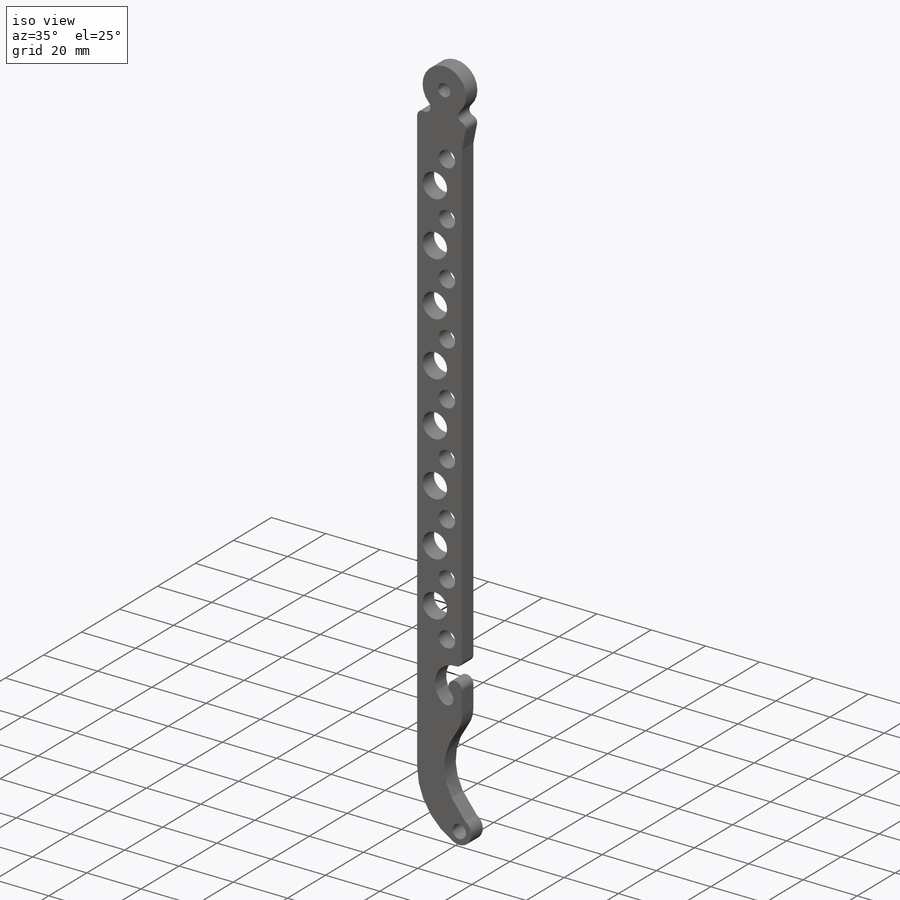
[diagram: iso view]
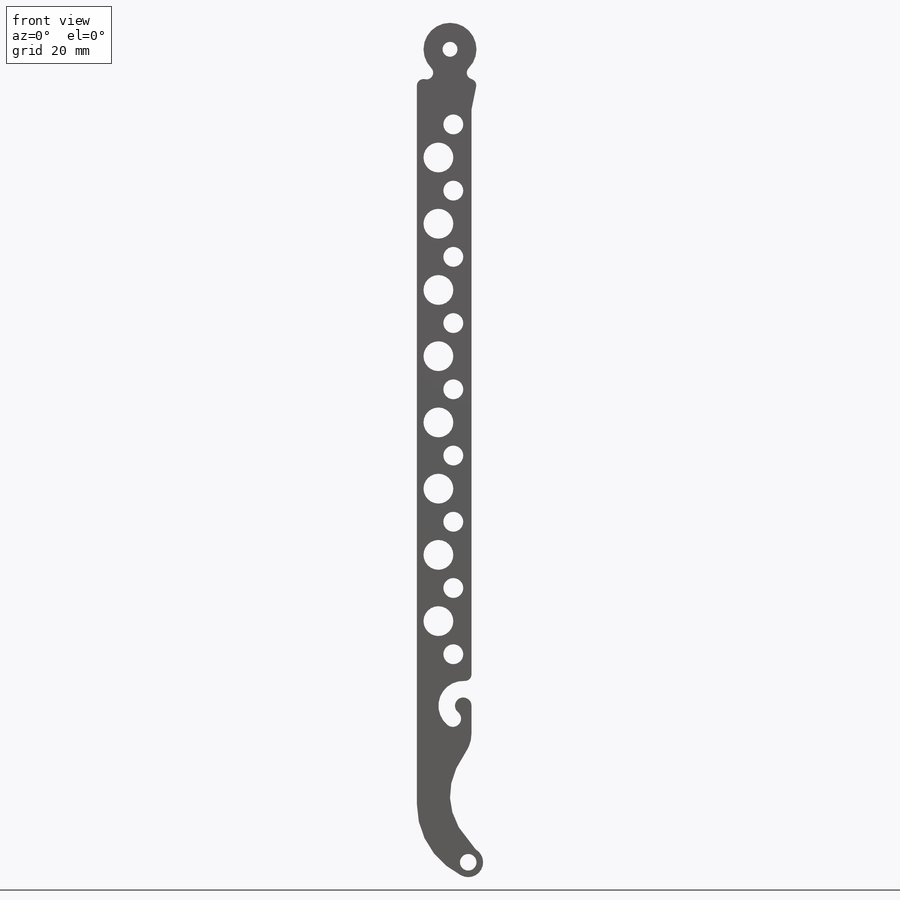
[diagram: front view]
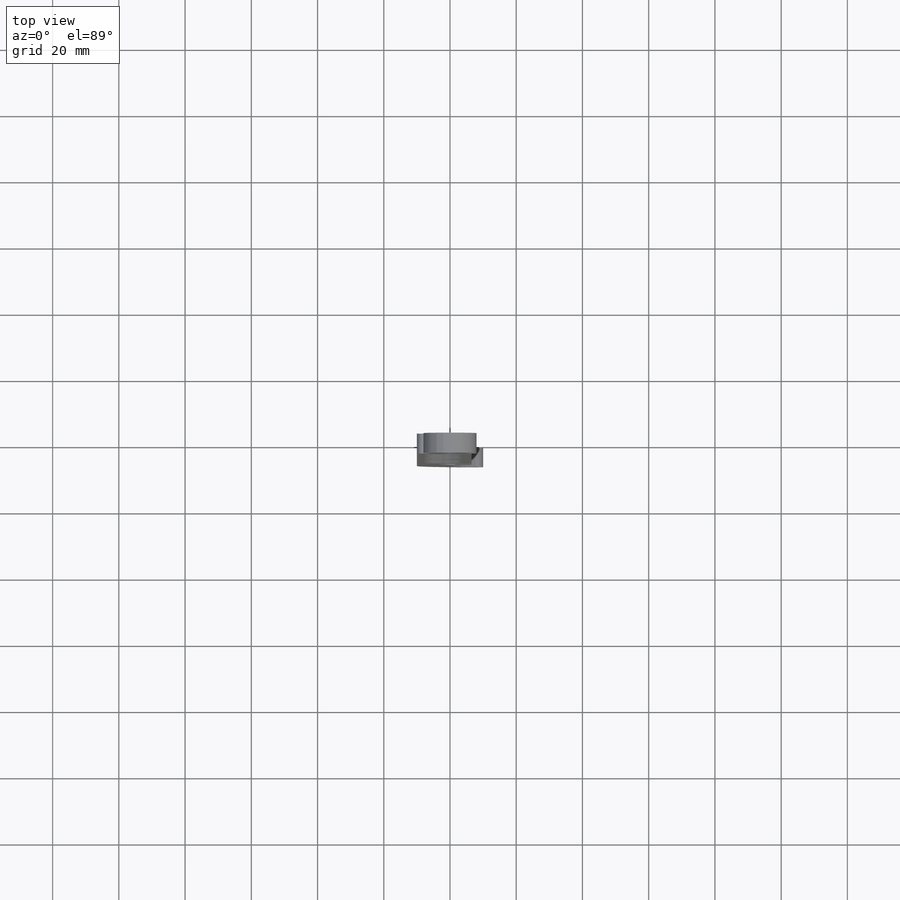
[diagram: top view]
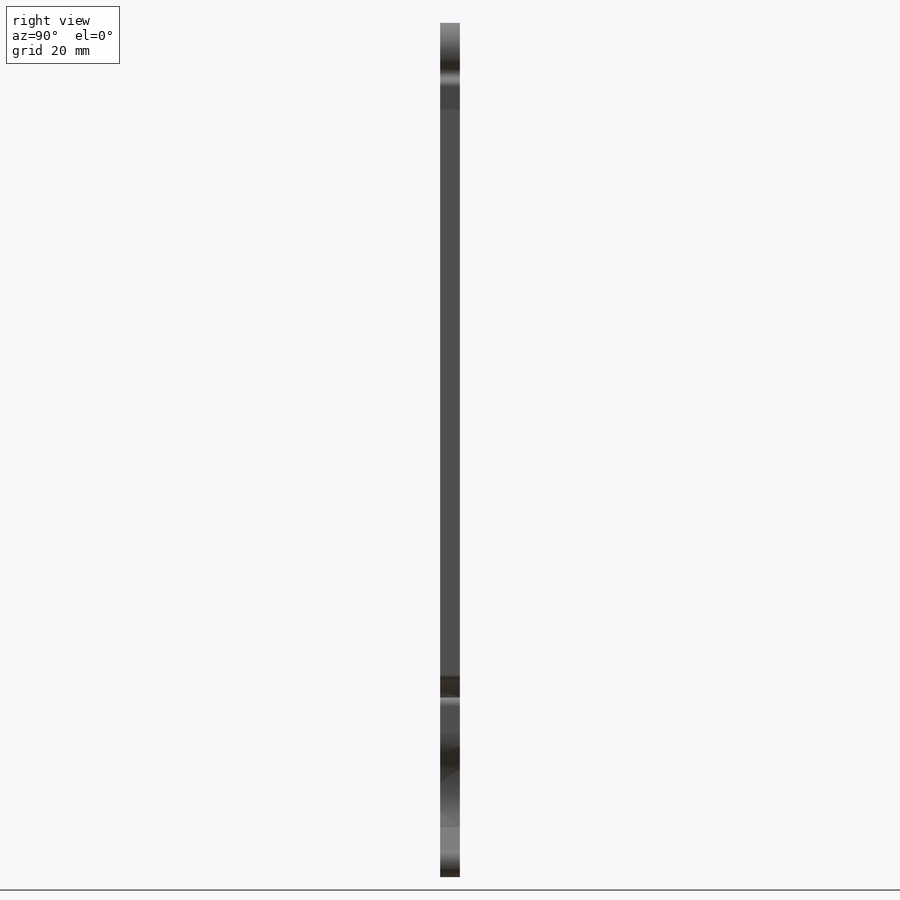
[diagram: right view]
SOLIDWORKS PART (.sldprt)
format: sldprt  version: not decoded by parser v0  size: 399,872 bytes
history: native  units: mm
features: sketch x6, plane x3, cut_extrude x3, fillet x3, material x1, extrude x1, hole x1 (+8 scaffold rows collapsed)
feature tree (26):
  scaffold x8  (default folders/planes/origin — collapsed)
  material  "Сплав 2024"
  plane  "Спереди"
  plane  "Сверху"
  plane  "Справа"
  sketch  "Эскиз1"  dims[c1.D1=20.0mm c1.D3=5.0mm c1.D4=9.0mm c1.D5=22.0mm c1.D2=250.0mm c1.D6=40.0mm c1.D7=7.0mm c1.D8=24.0mm c2.D7=3.5mm c2.D9=~9.204439mm c3.D9=30.0deg]
  extrude  "Бобышка-Вытянуть1"  Depth=6mm
  sketch  "Эскиз2"  dims[c1.D1=5.0mm c1.D2=15.0mm c1.D3=5.0mm c2.D2=~227.975612mm c3.D2=90.0deg c4.D2=~227.975612mm c5.D2=30.0deg c5.D3=5.0mm]
  cut_extrude  "Вырез-Вытянуть1"  [1 undecoded]
  hole  "Отверстие с зазором M41"  [1 undecoded]
  sketch  "Эскиз5"
  sketch  "Эскиз4"  dims[hole-wizard template sketch: 60 standard entries collapsed; hole parameters kept: c18.Глубина сквозного отверстия=6.0mm]
  sketch  "Эскиз6"  dims[c1.D2=12.0mm c1.D3=~227.975612mm c2.D3=45.0deg c2.D1=4.0mm]
  cut_extrude  "Вырез-Вытянуть2"  [1 undecoded]
  fillet  "Скругление1"  Radius=2mm
  sketch  "Эскиз9"  dims[c1.D3=6.0mm c1.D5=9.0mm c1.D1=~6.666667mm c1.D2=~6.666667mm c2.D3=~180.805015mm c2.D1=5.5mm c2.D2=6.5mm c2.D6=10.0mm c2.D4=9.0 c2.D7=8.0]
  cut_extrude  "Вырез-Вытянуть4"  [1 undecoded]
  fillet  "Скругление4"  Radius=2mm
  fillet  "Скругление5"  Radius=10mm
decode coverage: 9 of 14 modeling features carry decoded parameters
note: ~ marks probable driven/reference dimensions
note: 4 parameter values undecoded
summary: no parameter record found for 4 features
note: suppression state not decoded; provenance and decode notes live in map.json
